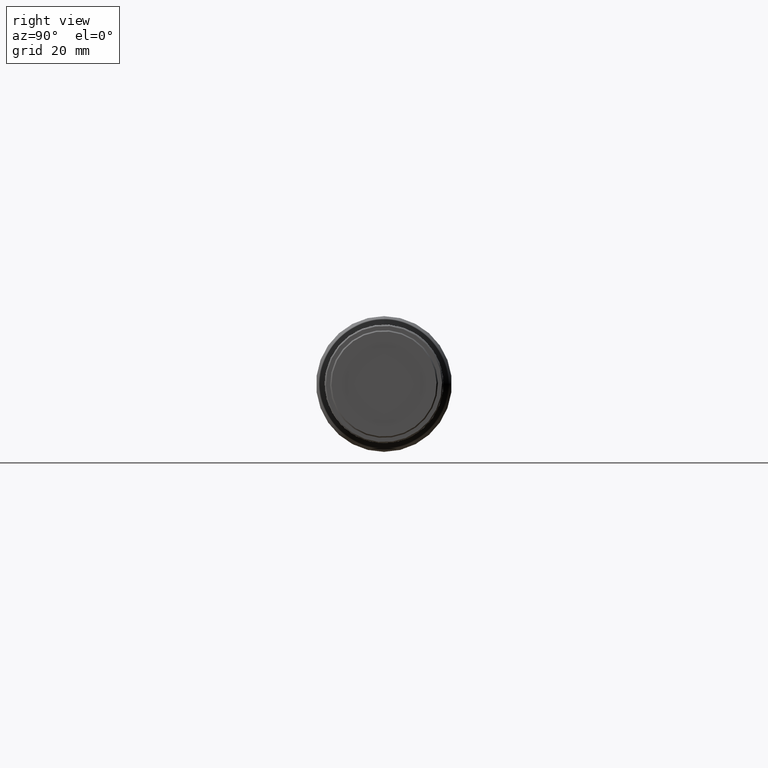
[diagram: clean part render]
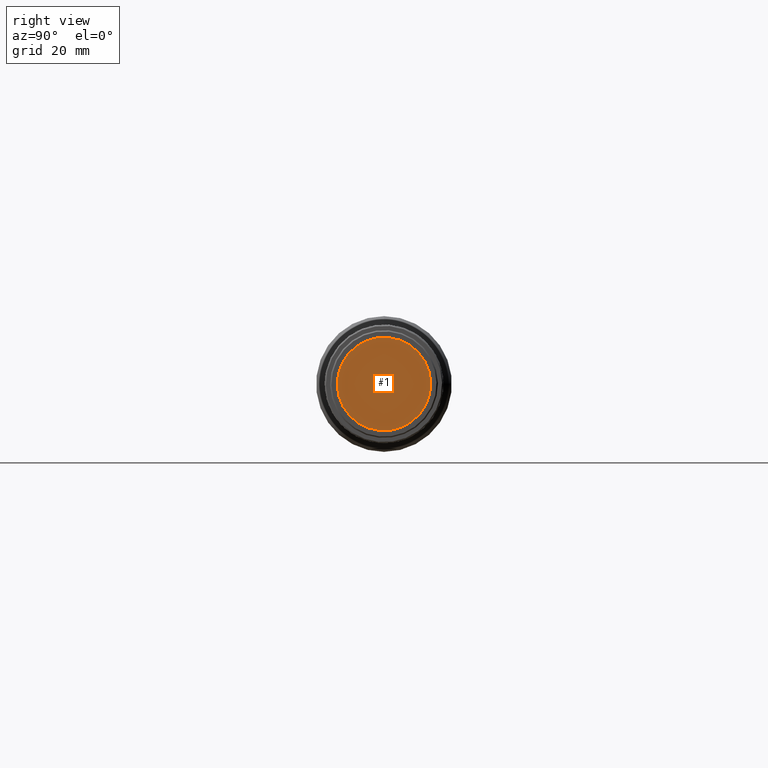
[diagram: same view with one face highlighted and labeled with its STEP entity id]
A machine part, right view. The second image highlights one B-rep face of the part: STEP entity #1.
In plain terms, the highlighted planar face has unit normal (-1, 0, -0).
Its self-contained STEP definition (entity closure, byte-faithful):
#1 = ADVANCED_FACE ( 'NONE', ( #1473 ), #1526, .F. ) ;
#124 = CARTESIAN_POINT ( 'NONE',  ( 165.2146604688354900, -8.389172561787274400E-017, -5.424073293340641900E-016 ) ) ;
#125 = CARTESIAN_POINT ( 'NONE',  ( 165.2146604688354900, -8.389172561787274400E-017, -5.424073293340641900E-016 ) ) ;
#188 = VERTEX_POINT ( 'NONE', #1216 ) ;
#406 = DIRECTION ( 'NONE',  ( 1.000000000000000000, 0.0000000000000000000, 0.0000000000000000000 ) ) ;
#600 = VERTEX_POINT ( 'NONE', #1008 ) ;
#669 = DIRECTION ( 'NONE',  ( -0.0000000000000000000, 0.0000000000000000000, 1.000000000000000000 ) ) ;
#694 = ORIENTED_EDGE ( 'NONE', *, *, #1399, .T. ) ;
#708 = DIRECTION ( 'NONE',  ( 0.0000000000000000000, 0.0000000000000000000, 1.000000000000000000 ) ) ;
#721 = EDGE_LOOP ( 'NONE', ( #1561, #694 ) ) ;
#947 = DIRECTION ( 'NONE',  ( -1.000000000000000000, 0.0000000000000000000, -0.0000000000000000000 ) ) ;
#952 = CARTESIAN_POINT ( 'NONE',  ( 165.2146604688354900, 0.0000000000000000000, 0.0000000000000000000 ) ) ;
#968 = CIRCLE ( 'NONE', #1146, 11.00000000000000000 ) ;
#1008 = CARTESIAN_POINT ( 'NONE',  ( 165.2146604688354900, -1.059295075434838300, -10.94887637811111200 ) ) ;
#1032 = EDGE_CURVE ( 'NONE', #600, #188, #968, .T. ) ;
#1112 = AXIS2_PLACEMENT_3D ( 'NONE', #124, #1697, #708 ) ;
#1146 = AXIS2_PLACEMENT_3D ( 'NONE', #125, #406, #1829 ) ;
#1189 = AXIS2_PLACEMENT_3D ( 'NONE', #952, #947, #669 ) ;
#1216 = CARTESIAN_POINT ( 'NONE',  ( 165.2146604688354900, 1.059295075434839600, 10.94887637811111200 ) ) ;
#1301 = CIRCLE ( 'NONE', #1112, 11.00000000000000000 ) ;
#1399 = EDGE_CURVE ( 'NONE', #188, #600, #1301, .T. ) ;
#1473 = FACE_OUTER_BOUND ( 'NONE', #721, .T. ) ;
#1526 = PLANE ( 'NONE',  #1189 ) ;
#1561 = ORIENTED_EDGE ( 'NONE', *, *, #1032, .T. ) ;
#1697 = DIRECTION ( 'NONE',  ( 1.000000000000000000, 0.0000000000000000000, 0.0000000000000000000 ) ) ;
#1829 = DIRECTION ( 'NONE',  ( 0.0000000000000000000, 1.776356839400250500E-015, 1.000000000000000000 ) ) ;